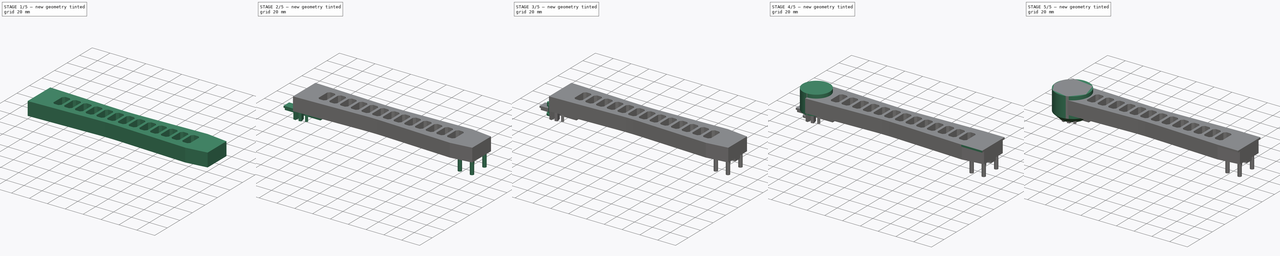
[diagram: build sequence overview — one tinted view per stage of 5, left to right]
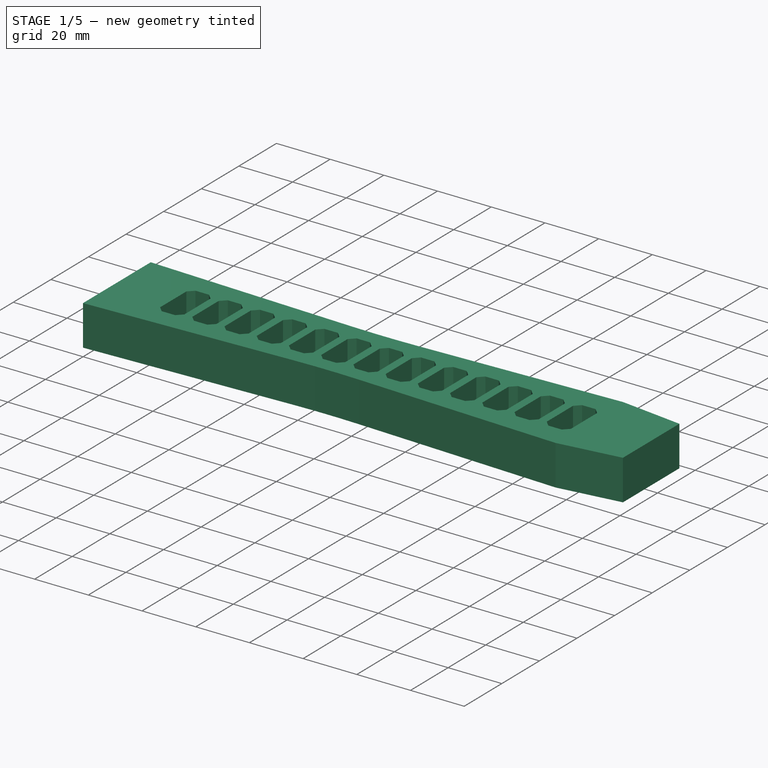
[diagram: stage 1 of 5 — iso view after this stage's code; geometry added in this stage tinted green]
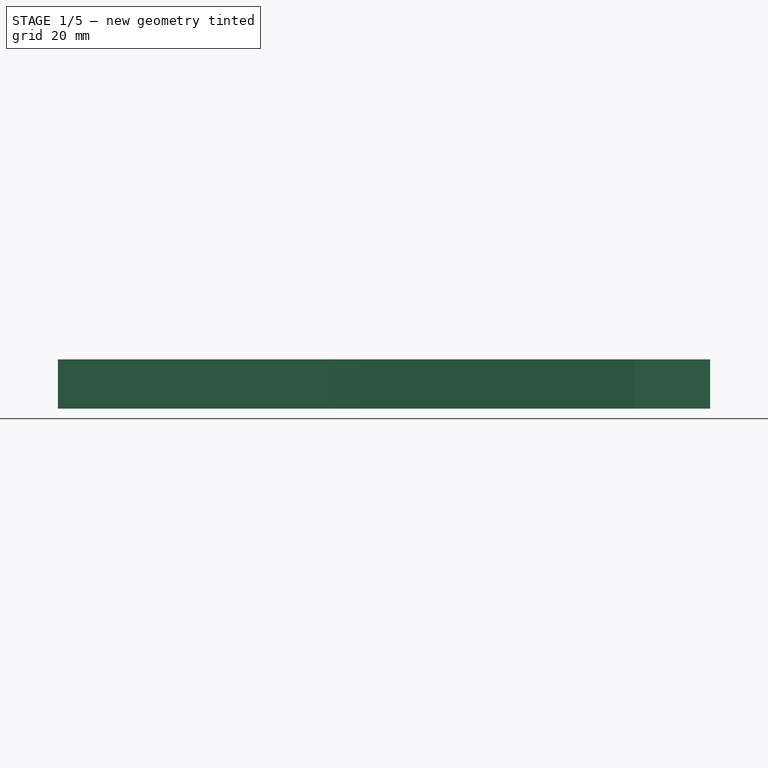
[diagram: stage 1 of 5 — front view after this stage's code; geometry added in this stage tinted green]
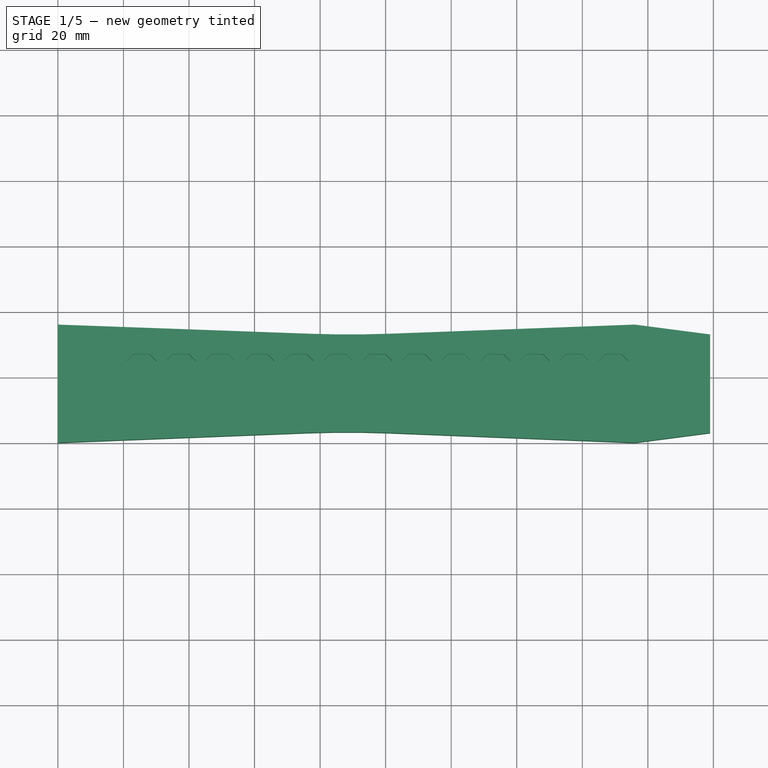
[diagram: stage 1 of 5 — top view after this stage's code; geometry added in this stage tinted green]
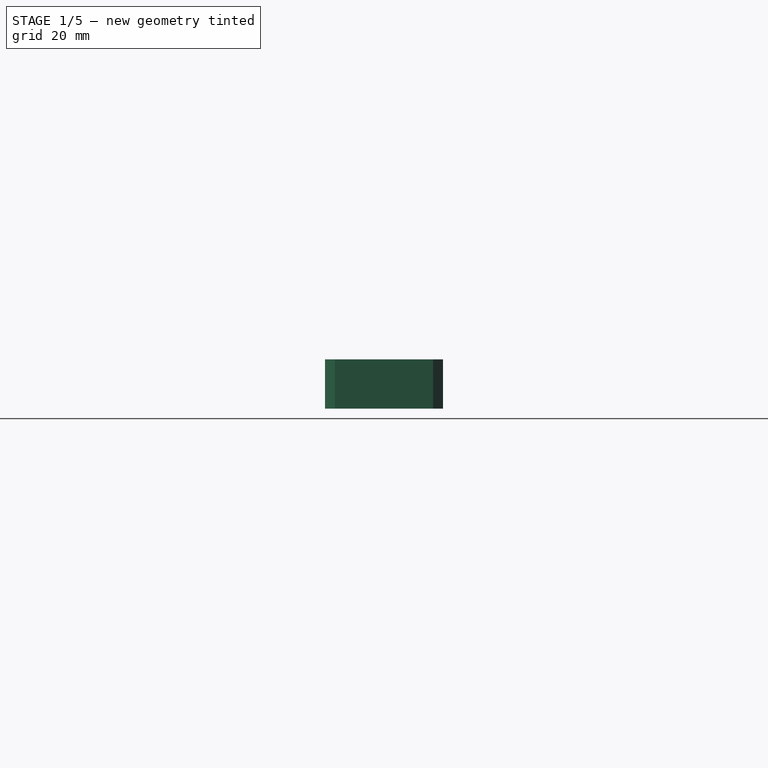
[diagram: stage 1 of 5 — right view after this stage's code; geometry added in this stage tinted green]
FCSTD DOCUMENT  (FreeCAD 0.16R4928 (Git))
Label: arm
License: All rights reserved
LicenseURL: http://en.wikipedia.org/wiki/All_rights_reserved
objects: Sketcher::SketchObject×7, PartDesign::Pad×6, Part::Cylinder×4, Part::Box×2, PartDesign::Chamfer×1, Part::MultiFuse×1, PartDesign::Pocket×1, PartDesign::LinearPattern×1
note: 30 computed .brp shape members not serialized (recipe doc carries the construction recipe); baked Part::Feature solids carry a one-line shape summary decoded from their .brp

FEATURE [Sketcher::SketchObject] Sketch004
  sketch-geometry (10):
    g0: LineSegment StartX=0 StartY=0 StartZ=0 EndX=76 EndY=3 EndZ=0
    g1: LineSegment StartX=100.84 StartY=2.9953 StartZ=0 EndX=176 EndY=0 EndZ=0
    g2: LineSegment StartX=176 StartY=36 StartZ=0 EndX=101.284 EndY=33.2169 EndZ=0
    g3: LineSegment StartX=77.0351 StartY=33.2052 StartZ=0 EndX=0 EndY=36 EndZ=0
    g4: LineSegment StartX=0 StartY=36 StartZ=0 EndX=0 EndY=0 EndZ=0
    g5: ArcOfCircle CenterX=89 CenterY=363 CenterZ=0 NormalX=0 NormalY=0 NormalZ=1 Radius=330.012 StartAngle=4.67613 EndAngle=4.74962
    g6: ArcOfCircle CenterX=88.3607 CenterY=-310.139 CenterZ=0 NormalX=0 NormalY=0 NormalZ=1 Radius=313.383 StartAngle=1.53097 EndAngle=1.61025
    g7: LineSegment StartX=176 StartY=0 StartZ=0 EndX=199 EndY=3 EndZ=0
    g8: LineSegment StartX=199 StartY=3 StartZ=0 EndX=199 EndY=33 EndZ=0
    g9: LineSegment StartX=199 StartY=33 StartZ=0 EndX=176 EndY=36 EndZ=0
  constraints (16):
    c: Coincident(g-1,g0)
    c: Coincident(g3,g4)
    c: Coincident(g4,g0)
    c: Vertical(g4)
    c: Tangent(g2,g5) = 1.5708
    c: Tangent(g3,g5) = 1.5708
    c: Tangent(g0,g6) = 1.5708
    c: Tangent(g1,g6) = 1.5708
    c: DistanceY(g2,g1) = -36
    c: DistanceY(g-1,g3) = 36
    c: DistanceX(g-1,g1) = 176
    c: DistanceY(g-1,g2) = 36
    c: Coincident(g1,g7)
    c: Coincident(g7,g8)
    c: Vertical(g8)
    c: Coincident(g8,g9)
FEATURE [PartDesign::Pad] Pad004
  Length = 15
  Length2 = 100
  Sketch = -> Sketch004
  Type = 0
FEATURE [Sketcher::SketchObject] Sketch006
  Placement = pos=(0,0,15) rot=(0,0,1;0rad)
  Support = -> Pad004 [Face12]
  sketch-geometry (10):
    g0: LineSegment StartX=21 StartY=18 StartZ=0 EndX=21 EndY=25 EndZ=0
    g1: LineSegment StartX=21 StartY=25 StartZ=0 EndX=23 EndY=27 EndZ=0
    g2: LineSegment StartX=23 StartY=27 StartZ=0 EndX=28 EndY=27 EndZ=0
    g3: LineSegment StartX=28 StartY=27 StartZ=0 EndX=30 EndY=25 EndZ=0
    g4: LineSegment StartX=30 StartY=25 StartZ=0 EndX=30 EndY=18 EndZ=0
    g5: LineSegment StartX=30 StartY=18 StartZ=0 EndX=30 EndY=11 EndZ=0
    g6: LineSegment StartX=30 StartY=11 StartZ=0 EndX=28 EndY=9 EndZ=0
    g7: LineSegment StartX=28 StartY=9 StartZ=0 EndX=23 EndY=9 EndZ=0
    g8: LineSegment StartX=23 StartY=9 StartZ=0 EndX=21 EndY=11 EndZ=0
    g9: LineSegment StartX=21 StartY=11 StartZ=0 EndX=21 EndY=18 EndZ=0
  constraints (16):
    c: Vertical(g0)
    c: Coincident(g0,g1)
    c: Coincident(g1,g2)
    c: Horizontal(g2)
    c: Coincident(g2,g3)
    c: Coincident(g3,g4)
    c: Vertical(g4)
    c: Coincident(g4,g5)
    c: Vertical(g5)
    c: Coincident(g5,g6)
    c: Coincident(g6,g7)
    c: Horizontal(g7)
    c: Coincident(g7,g8)
    c: Coincident(g8,g9)
    c: Coincident(g9,g0)
    c: Vertical(g9)
FEATURE [PartDesign::Pocket] Pocket
  Length = 8
  Sketch = -> Sketch006
  Type = 0
FEATURE [PartDesign::LinearPattern] LinearPattern
  Direction = -> Sketch006 [H_Axis]
  Length = 144
  Occurrences = 13
  Originals = -> [Pocket]
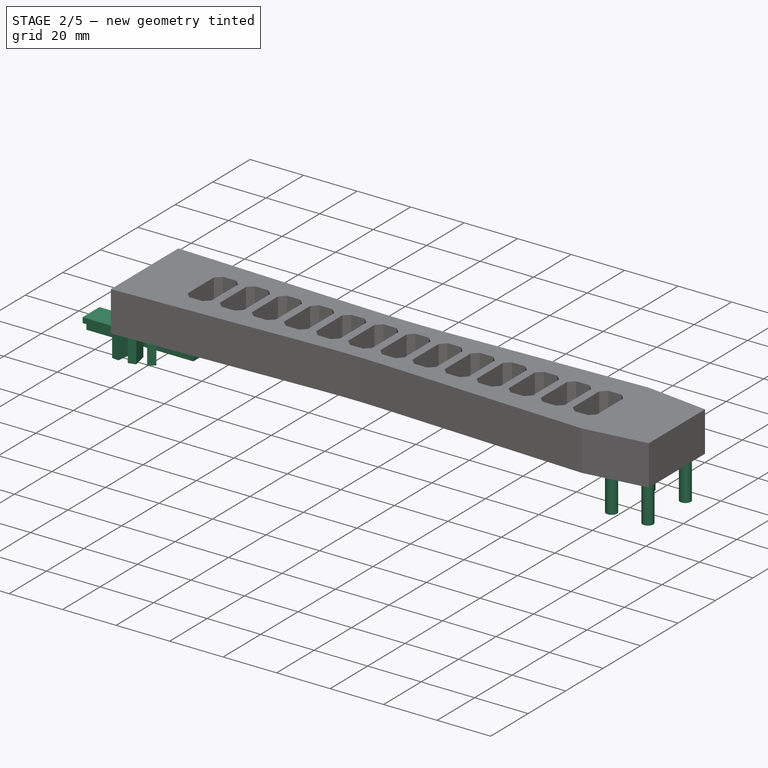
[diagram: stage 2 of 5 — iso view after this stage's code; geometry added in this stage tinted green]
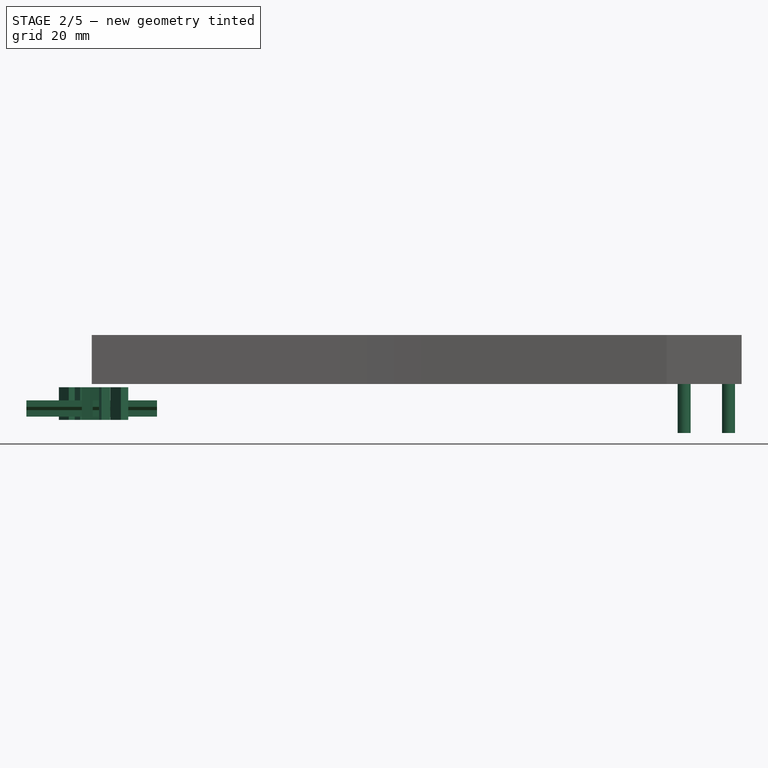
[diagram: stage 2 of 5 — front view after this stage's code; geometry added in this stage tinted green]
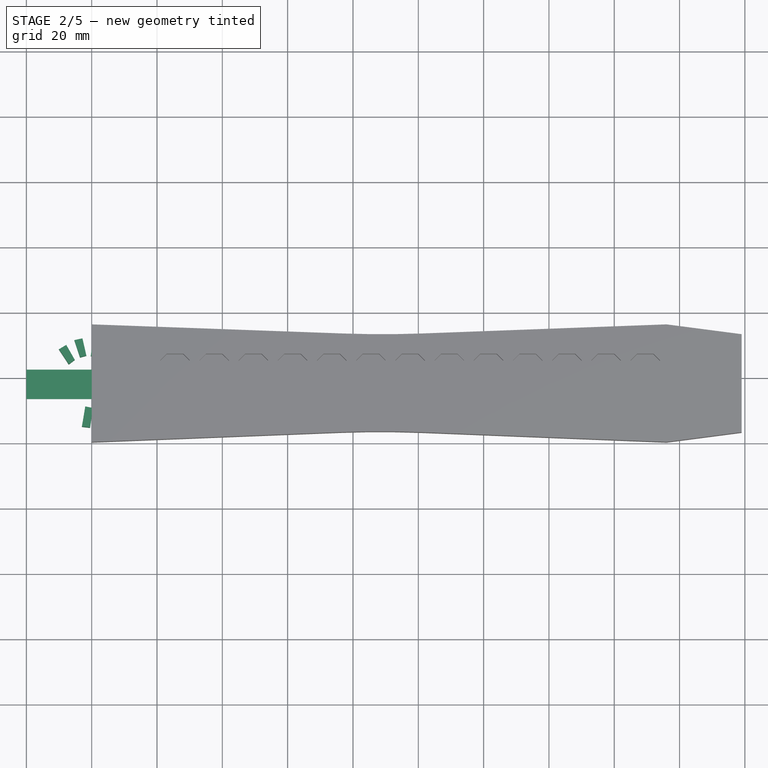
[diagram: stage 2 of 5 — top view after this stage's code; geometry added in this stage tinted green]
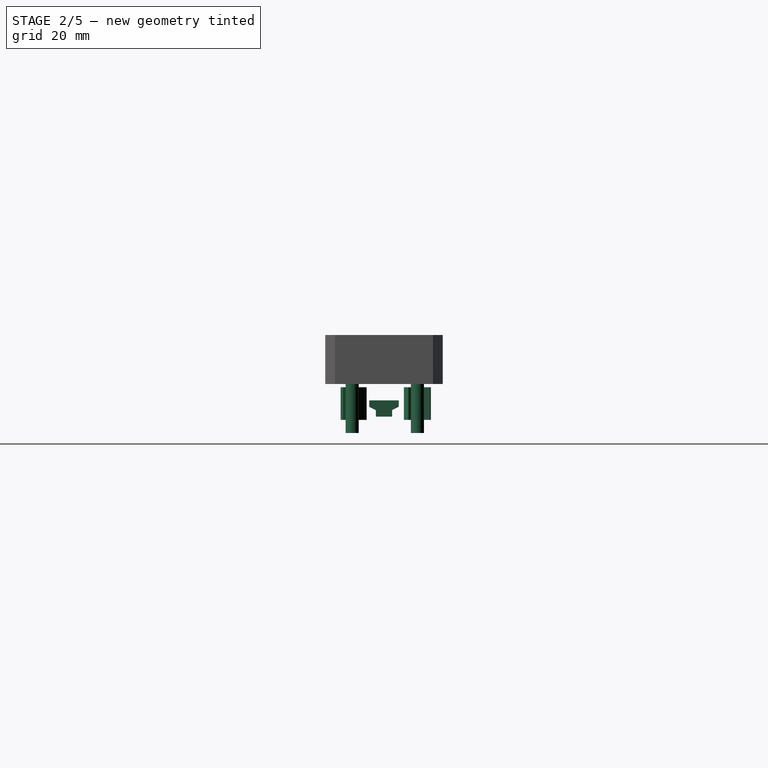
[diagram: stage 2 of 5 — right view after this stage's code; geometry added in this stage tinted green]
FEATURE [PartDesign::Pad] Pad002
  Length = 10
  Length2 = 100
  Placement = pos=(0,0,-11) rot=(0,0,1;0rad)
  Sketch = -> Sketch003
  Type = 0
FEATURE [PartDesign::Pad] Pad003
  Length = 40
  Length2 = 100
  Placement = pos=(-20,29.5,-6) rot=(-0.57735,0.57735,0.57735;4.18879rad)
  Reversed = true
  Sketch = -> Sketch
  Type = 0
FEATURE [Sketcher::SketchObject] Sketch005
  Placement = pos=(-6.25,4,-15) rot=(0,0,1;0rad)
  sketch-geometry (4):
    g0: Circle CenterX=201.227 CenterY=4.24831 CenterZ=0 NormalX=0 NormalY=0 NormalZ=1 Radius=2
    g1: Circle CenterX=201.226 CenterY=24.2448 CenterZ=0 NormalX=0 NormalY=0 NormalZ=1 Radius=2
    g2: Circle CenterX=187.638 CenterY=4.25225 CenterZ=0 NormalX=0 NormalY=0 NormalZ=1 Radius=2
    g3: Circle CenterX=187.638 CenterY=24.2379 CenterZ=0 NormalX=0 NormalY=0 NormalZ=1 Radius=2
  constraints (4):
    c: Radius(g0) = 2
    c: Radius(g1) = 2
    c: Radius(g2) = 2
    c: Radius(g3) = 2
FEATURE [PartDesign::Pad] Pad005
  Length = 30
  Length2 = 100
  Placement = pos=(-6.25,4,-15) rot=(0,0,1;0rad)
  Sketch = -> Sketch005
  Type = 0
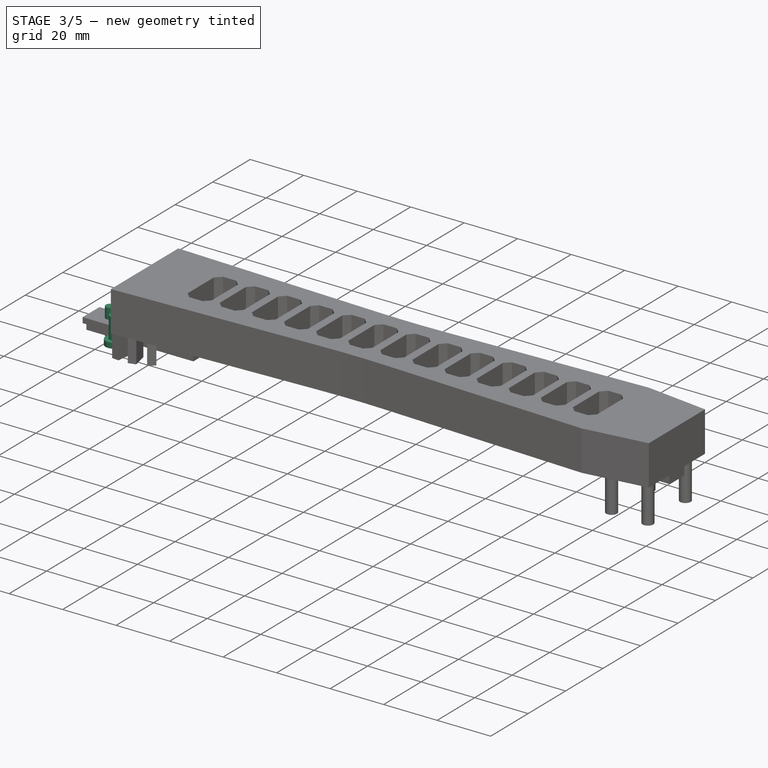
[diagram: stage 3 of 5 — iso view after this stage's code; geometry added in this stage tinted green]
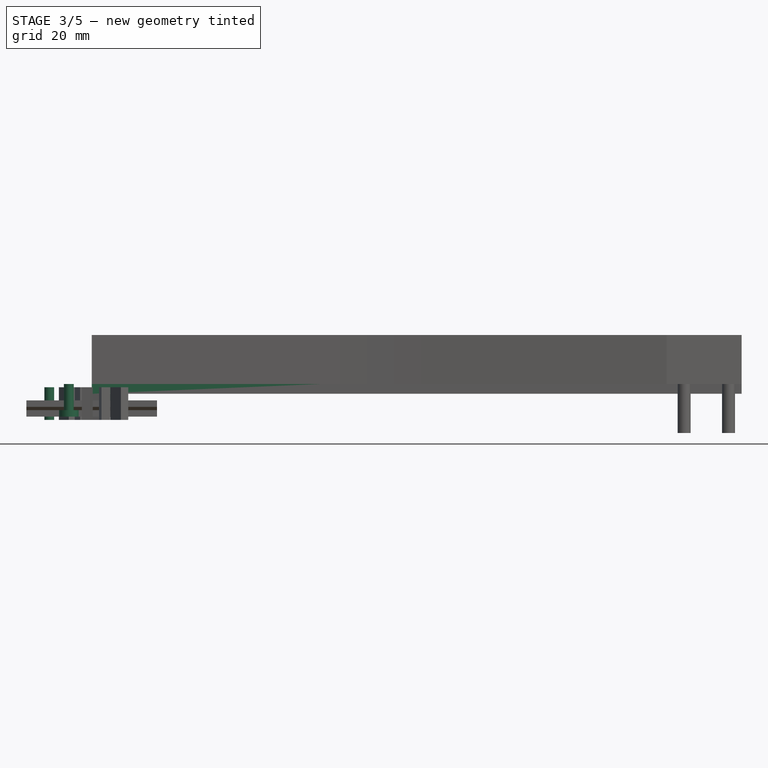
[diagram: stage 3 of 5 — front view after this stage's code; geometry added in this stage tinted green]
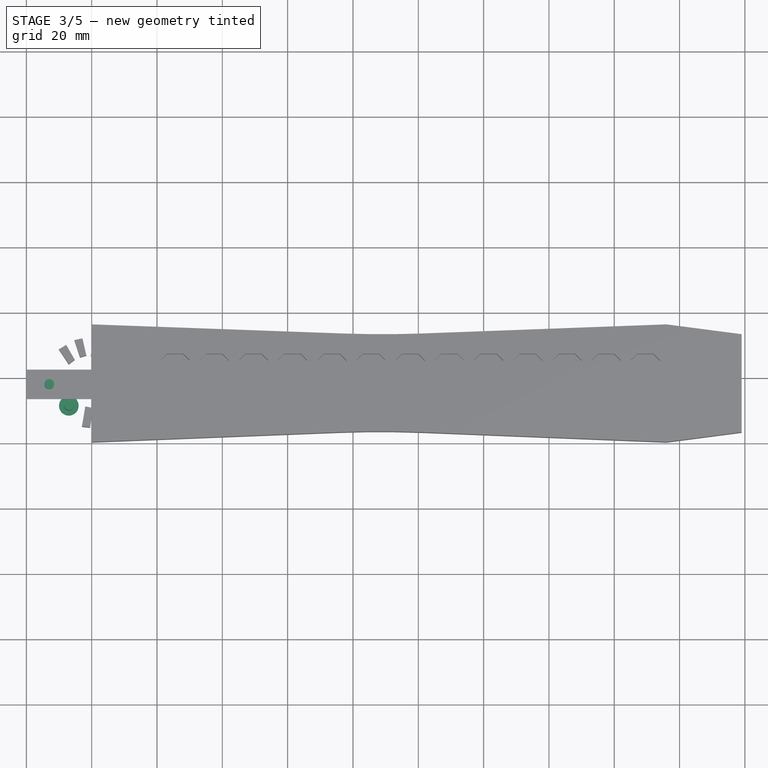
[diagram: stage 3 of 5 — top view after this stage's code; geometry added in this stage tinted green]
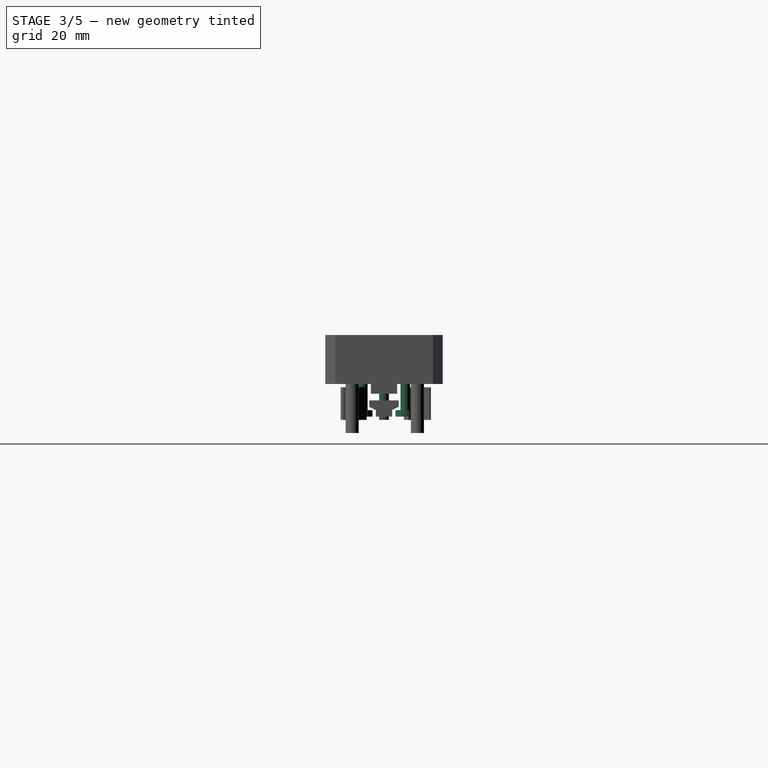
[diagram: stage 3 of 5 — right view after this stage's code; geometry added in this stage tinted green]
FEATURE [Part::Cylinder] Cylinder003
  Angle = 360
  Height = 10
  Placement = pos=(-13,18,-11) rot=(0,0,1;0rad)
  Radius = 1.5
FEATURE [Sketcher::SketchObject] Sketch002
  Placement = pos=(0,0,-10) rot=(1,0,0;3.14159rad)
  sketch-geometry (2):
    g0: Circle CenterX=-7 CenterY=-11.4933 CenterZ=0 NormalX=0 NormalY=0 NormalZ=1 Radius=3.00077
    g1: Circle CenterX=7 CenterY=-24.5112 CenterZ=0 NormalX=0 NormalY=0 NormalZ=1 Radius=3
FEATURE [Part::Box] Box002  label="Cube002"
  Height = 8.5
  Length = 199
  Placement = pos=(0,14,-3) rot=(0,0,1;0rad)
  Width = 8
FEATURE [PartDesign::Pad] Pad
  Length = 2
  Length2 = 100
  Placement = pos=(0,0,-10) rot=(1,0,0;3.14159rad)
  Reversed = true
  Sketch = -> Sketch002
  Type = 0
FEATURE [PartDesign::Pad] Pad001
  Length = 10
  Length2 = 100
  Placement = pos=(0,0,-10) rot=(1,0,0;3.14159rad)
  Reversed = true
  Sketch = -> Sketch001
  Type = 0
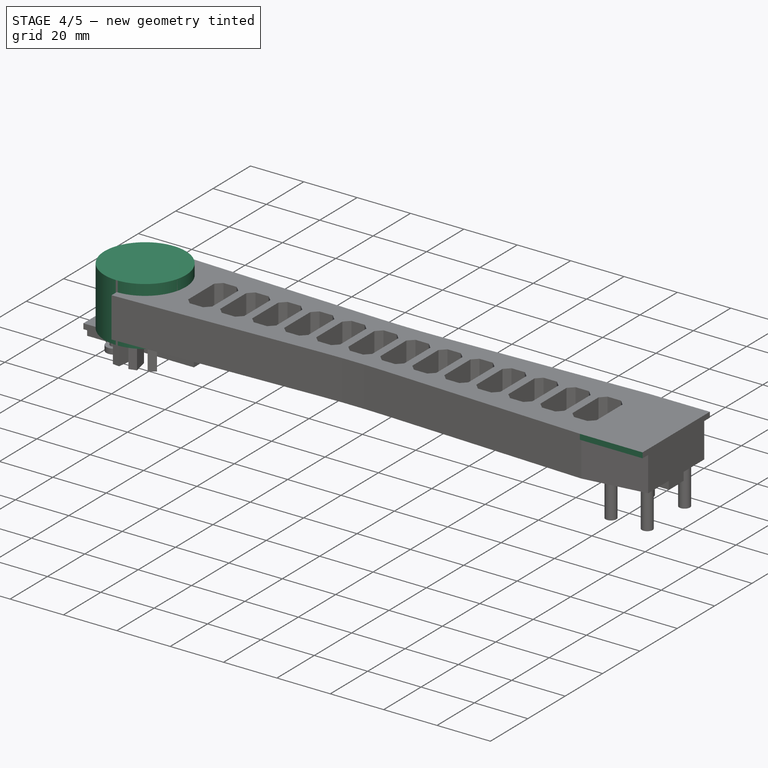
[diagram: stage 4 of 5 — iso view after this stage's code; geometry added in this stage tinted green]
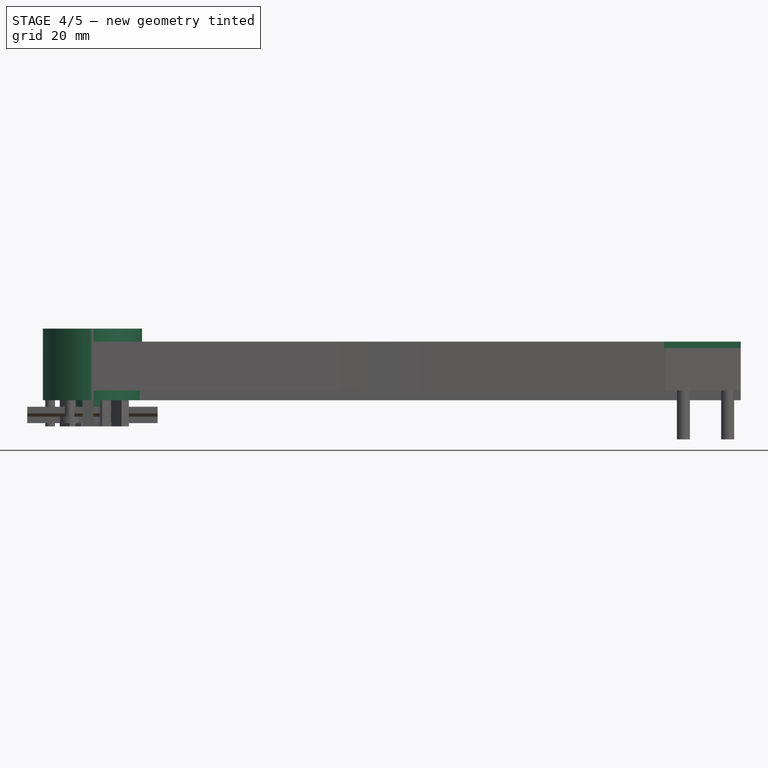
[diagram: stage 4 of 5 — front view after this stage's code; geometry added in this stage tinted green]
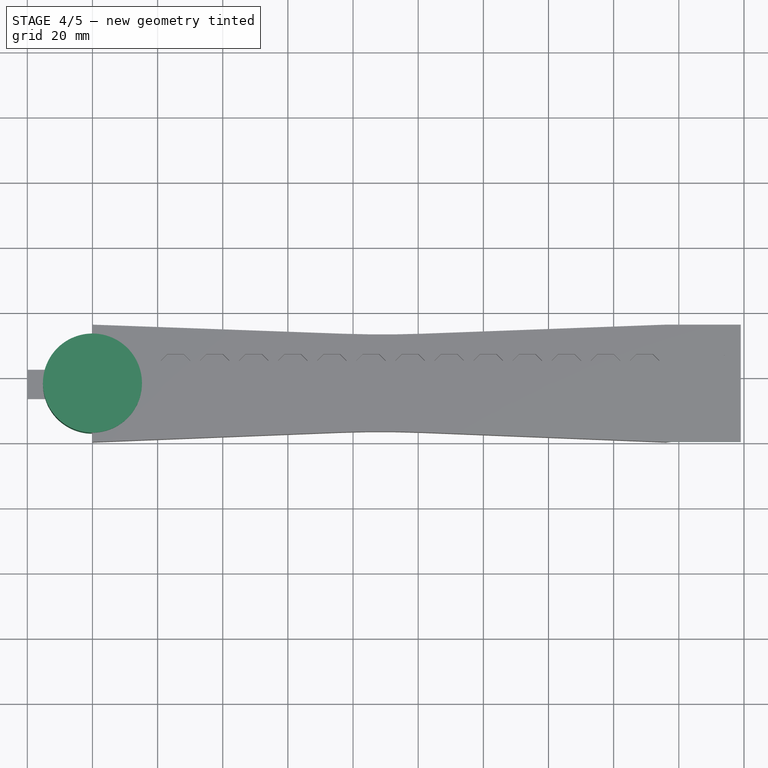
[diagram: stage 4 of 5 — top view after this stage's code; geometry added in this stage tinted green]
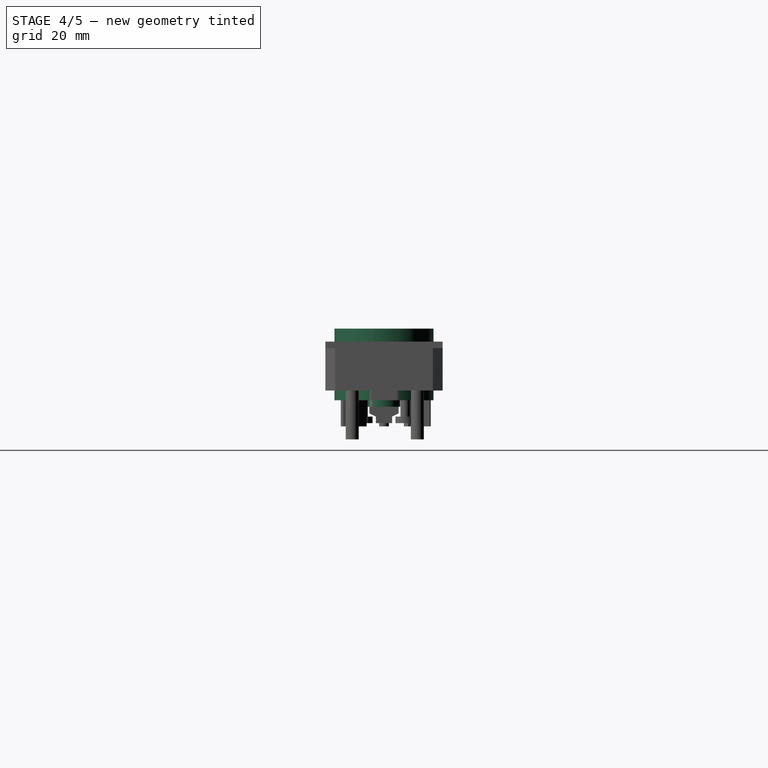
[diagram: stage 4 of 5 — right view after this stage's code; geometry added in this stage tinted green]
FEATURE [Part::Cylinder] Cylinder001
  Angle = 360
  Height = 22
  Placement = pos=(0,18,-3) rot=(0,0,1;0rad)
  Radius = 15.2
FEATURE [Part::Box] Box001  label="Cube001"
  Height = 2
  Length = 23.5
  Placement = pos=(175.5,0,13) rot=(0,0,1;0rad)
  Width = 36
FEATURE [Sketcher::SketchObject] Sketch
  Placement = pos=(-20,29.5,-6) rot=(-0.57735,0.57735,0.57735;4.18879rad)
  sketch-geometry (8):
    g0: LineSegment StartX=7 StartY=1 StartZ=0 EndX=16 EndY=1 EndZ=0
    g1: LineSegment StartX=16 StartY=1 StartZ=0 EndX=16 EndY=-1 EndZ=0
    g2: LineSegment StartX=7 StartY=1 StartZ=0 EndX=7 EndY=-1 EndZ=0
    g3: LineSegment StartX=7 StartY=-1 StartZ=0 EndX=9 EndY=-2 EndZ=0
    g4: LineSegment StartX=9 StartY=-2 StartZ=0 EndX=9 EndY=-4 EndZ=0
    g5: LineSegment StartX=9 StartY=-4 StartZ=0 EndX=14 EndY=-4 EndZ=0
    g6: LineSegment StartX=14 StartY=-4 StartZ=0 EndX=14 EndY=-2 EndZ=0
    g7: LineSegment StartX=14 StartY=-2 StartZ=0 EndX=16 EndY=-1 EndZ=0
  constraints (14):
    c: Horizontal(g0)
    c: Coincident(g0,g1)
    c: Vertical(g1)
    c: Coincident(g0,g2)
    c: Vertical(g2)
    c: Coincident(g2,g3)
    c: Coincident(g3,g4)
    c: Vertical(g4)
    c: Coincident(g4,g5)
    c: Horizontal(g5)
    c: Coincident(g5,g6)
    c: Vertical(g6)
    c: Coincident(g6,g7)
    c: Coincident(g1,g7)
FEATURE [Part::Cylinder] Cylinder002
  Angle = 360
  Height = 10
  Placement = pos=(0,18,-5) rot=(0,0,1;0rad)
  Radius = 5
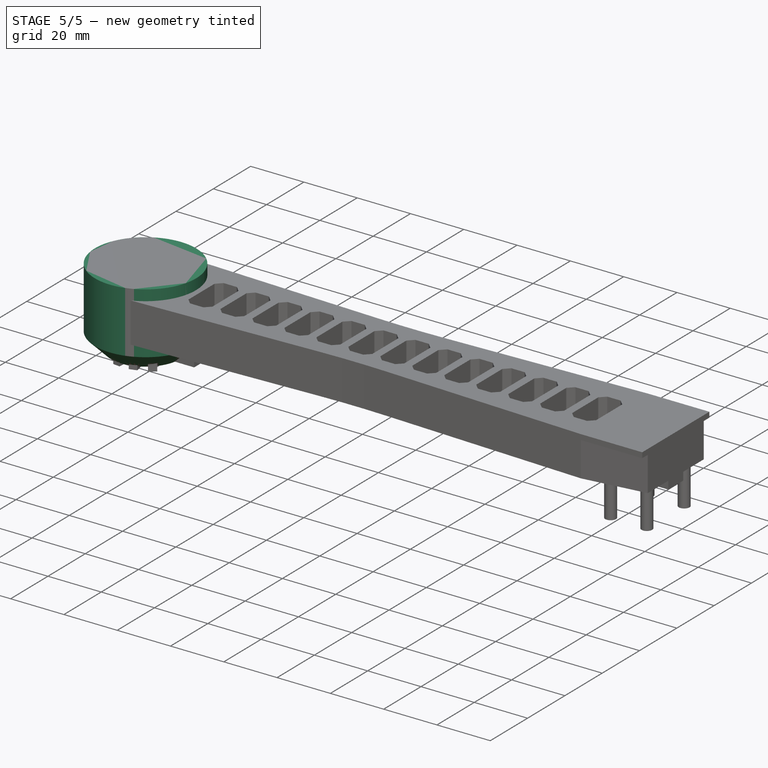
[diagram: stage 5 of 5 — iso view after this stage's code; geometry added in this stage tinted green]
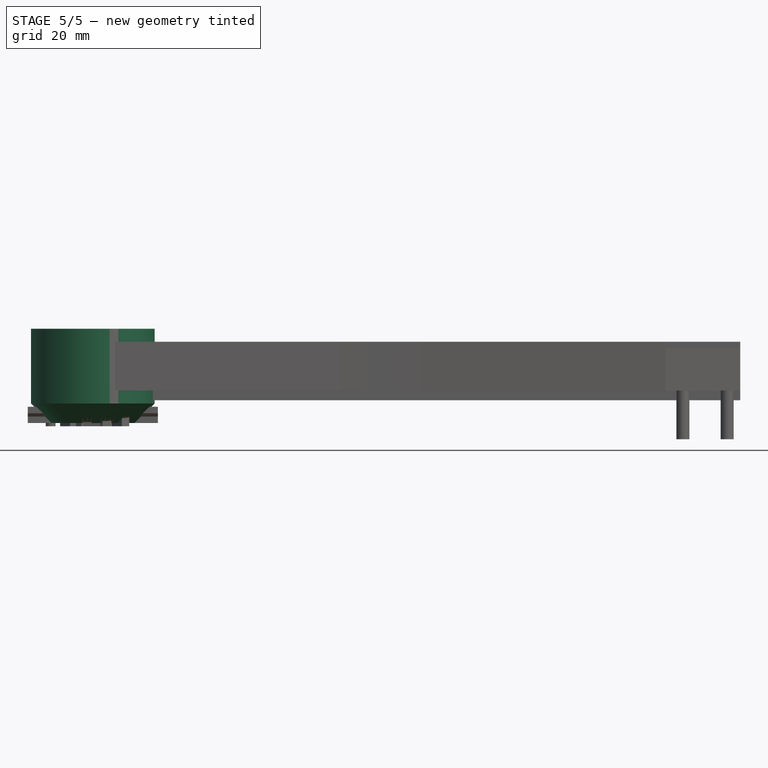
[diagram: stage 5 of 5 — front view after this stage's code; geometry added in this stage tinted green]
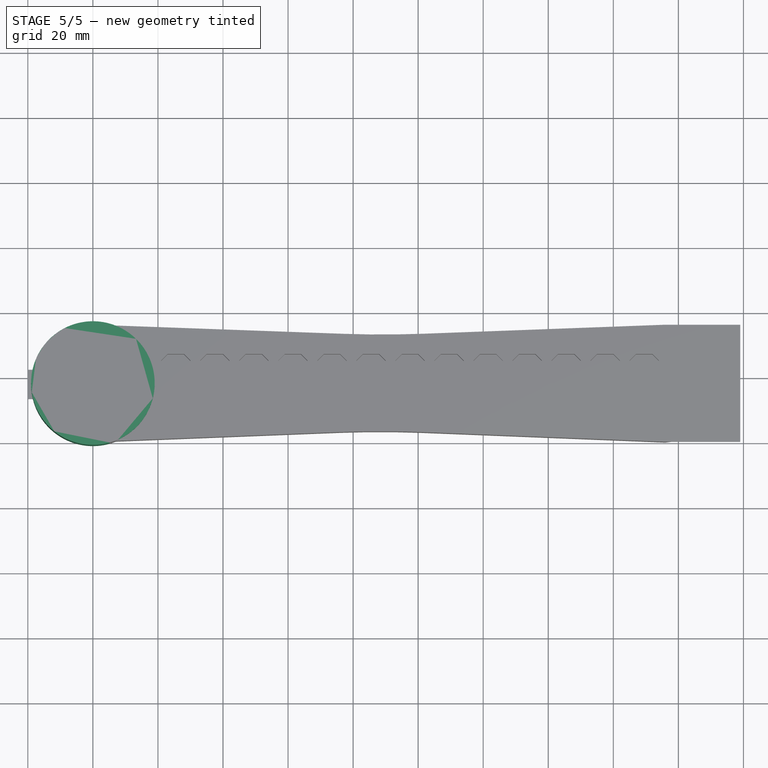
[diagram: stage 5 of 5 — top view after this stage's code; geometry added in this stage tinted green]
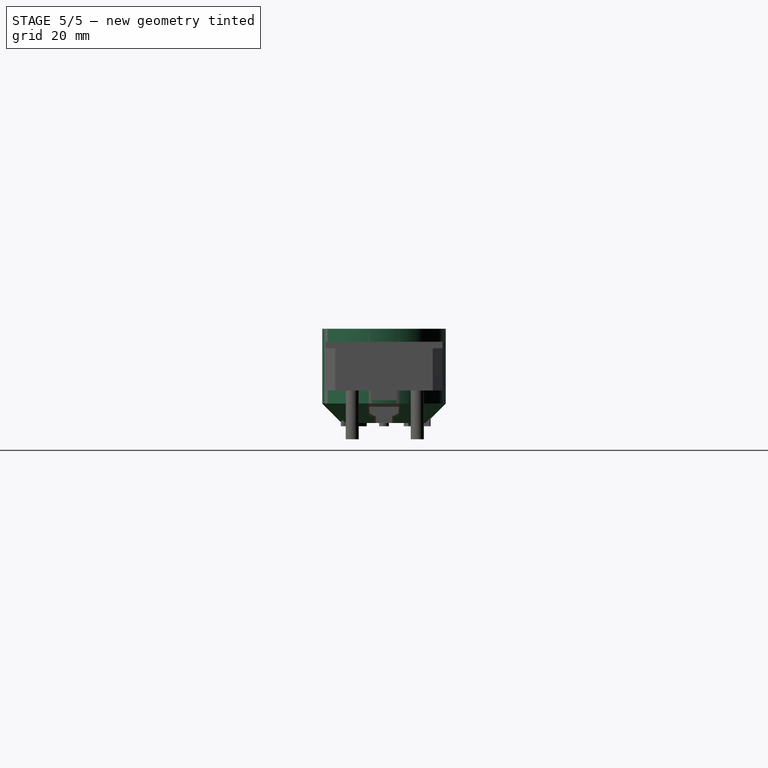
[diagram: stage 5 of 5 — right view after this stage's code; geometry added in this stage tinted green]
FEATURE [Part::Cylinder] Cylinder
  Angle = 360
  Height = 29
  Placement = pos=(0,18,-10) rot=(0,0,1;0rad)
  Radius = 19
FEATURE [Sketcher::SketchObject] Sketch003
  Placement = pos=(0,0,-11) rot=(0,0,1;0rad)
  sketch-geometry (24):
    g0: LineSegment StartX=-3 StartY=5 StartZ=0 EndX=-0.487519 EndY=4.71382 EndZ=0
    g1: LineSegment StartX=-0.487519 StartY=4.71382 StartZ=0 EndX=0.310489 EndY=10.6989 EndZ=0
    g2: LineSegment StartX=0.310489 StartY=10.6989 StartZ=0 EndX=-1.9693 EndY=11.1581 EndZ=0
    g3: LineSegment StartX=-1.9693 StartY=11.1581 StartZ=0 EndX=-3 EndY=5 EndZ=0
    g4: LineSegment StartX=3 StartY=4.71382 StartZ=0 EndX=5.69704 EndY=5.47193 EndZ=0
    g5: LineSegment StartX=5.69704 StartY=5.47193 StartZ=0 EndX=4.46013 EndY=11 EndZ=0
    g6: LineSegment StartX=4.46013 StartY=11 StartZ=0 EndX=2.22571 EndY=10.3797 EndZ=0
    g7: LineSegment StartX=2.22571 StartY=10.3797 StartZ=0 EndX=3 EndY=4.71382 EndZ=0
    g8: LineSegment StartX=8.92897 StartY=6.58914 StartZ=0 EndX=11.1995 EndY=8.3192 EndZ=0
    g9: LineSegment StartX=11.1995 StartY=8.3192 StartZ=0 EndX=7.77187 EndY=12.6783 EndZ=0
    g10: LineSegment StartX=7.77187 StartY=12.6783 StartZ=0 EndX=5.73694 EndY=11.4414 EndZ=0
    g11: LineSegment StartX=5.73694 StartY=11.4414 StartZ=0 EndX=8.92897 EndY=6.58914 EndZ=0
    g12: LineSegment StartX=3 StartY=32 StartZ=0 EndX=0.509665 EndY=32.3366 EndZ=0
    g13: LineSegment StartX=0.509665 StartY=32.3366 StartZ=0 EndX=-0.288343 EndY=26.6708 EndZ=0
    g14: LineSegment StartX=-0.288343 StartY=26.6708 StartZ=0 EndX=2.30518 EndY=26.2319 EndZ=0
    g15: LineSegment StartX=2.30518 StartY=26.2319 StartZ=0 EndX=3 EndY=32 EndZ=0
    g16: LineSegment StartX=-2.83791 StartY=32 StartZ=0 EndX=-5.31238 EndY=31.4738 EndZ=0
    g17: LineSegment StartX=-5.31238 StartY=31.4738 StartZ=0 EndX=-3.55768 EndY=26.2145 EndZ=0
    g18: LineSegment StartX=-3.55768 StartY=26.2145 StartZ=0 EndX=-1.63684 EndY=26.7506 EndZ=0
    g19: LineSegment StartX=-1.63684 StartY=26.7506 StartZ=0 EndX=-2.83791 EndY=32 EndZ=0
    g20: LineSegment StartX=-7.78961 StartY=30.0099 StartZ=0 EndX=-10.0531 EndY=28.6484 EndZ=0
    g21: LineSegment StartX=-10.0531 StartY=28.6484 StartZ=0 EndX=-7.02062 EndY=24.0848 EndZ=0
    g22: LineSegment StartX=-7.02062 StartY=24.0848 StartZ=0 EndX=-5.1995 EndY=25.4613 EndZ=0
    g23: LineSegment StartX=-5.1995 StartY=25.4613 StartZ=0 EndX=-7.78961 EndY=30.0099 EndZ=0
  constraints (24):
    c: Coincident(g0,g1)
    c: Coincident(g1,g2)
    c: Coincident(g2,g3)
    c: Coincident(g0,g3)
    c: Coincident(g4,g5)
    c: Coincident(g5,g6)
    c: Coincident(g6,g7)
    c: Coincident(g7,g4)
    c: Coincident(g8,g9)
    c: Coincident(g9,g10)
    c: Coincident(g10,g11)
    c: Coincident(g11,g8)
    c: Coincident(g12,g13)
    c: Coincident(g13,g14)
    c: Coincident(g14,g15)
    c: Coincident(g15,g12)
    c: Coincident(g16,g17)
    c: Coincident(g17,g18)
    c: Coincident(g18,g19)
    c: Coincident(g19,g16)
    c: Coincident(g20,g21)
    c: Coincident(g21,g22)
    c: Coincident(g22,g23)
    c: Coincident(g23,g20)
FEATURE [Sketcher::SketchObject] Sketch001
  Placement = pos=(0,0,-10) rot=(1,0,0;3.14159rad)
  sketch-geometry (2):
    g0: Circle CenterX=-7 CenterY=-11.4933 CenterZ=0 NormalX=0 NormalY=0 NormalZ=1 Radius=1.502
    g1: Circle CenterX=7 CenterY=-24.5112 CenterZ=0 NormalX=0 NormalY=0 NormalZ=1 Radius=1.45103
FEATURE [PartDesign::Chamfer] Chamfer
  Base = -> Cylinder [Edge3]
  Placement = pos=(0,18,-10) rot=(0,0,1;0rad)
  Size = 6
FEATURE [Part::MultiFuse] Fusion
  Shapes = -> [Cylinder003,Cylinder001,Box001,Cylinder002,Pad003,Box002,Pad,Pad002,Pad001,Pad005]
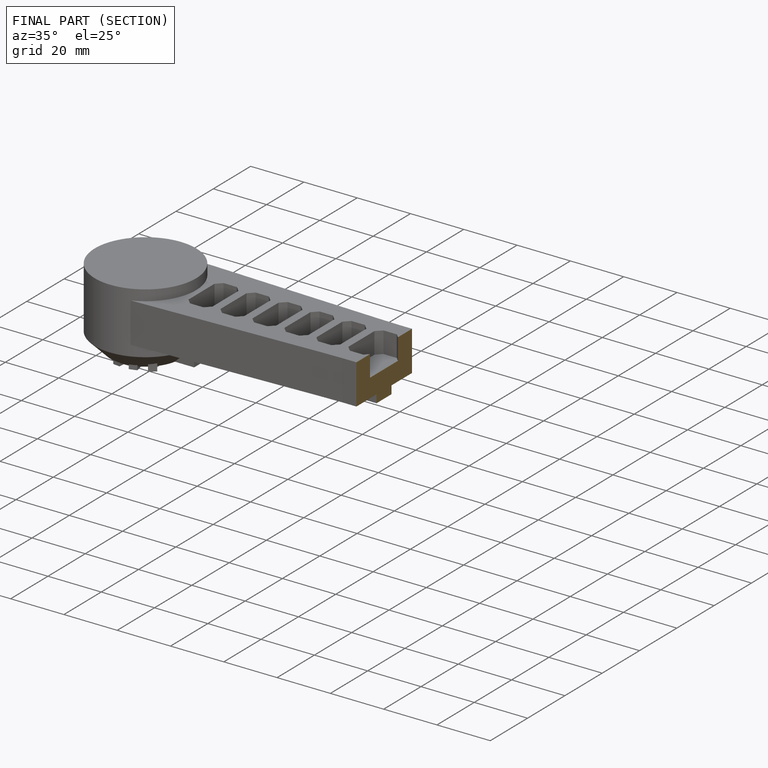
[diagram: finished part — half-section view (interior)]
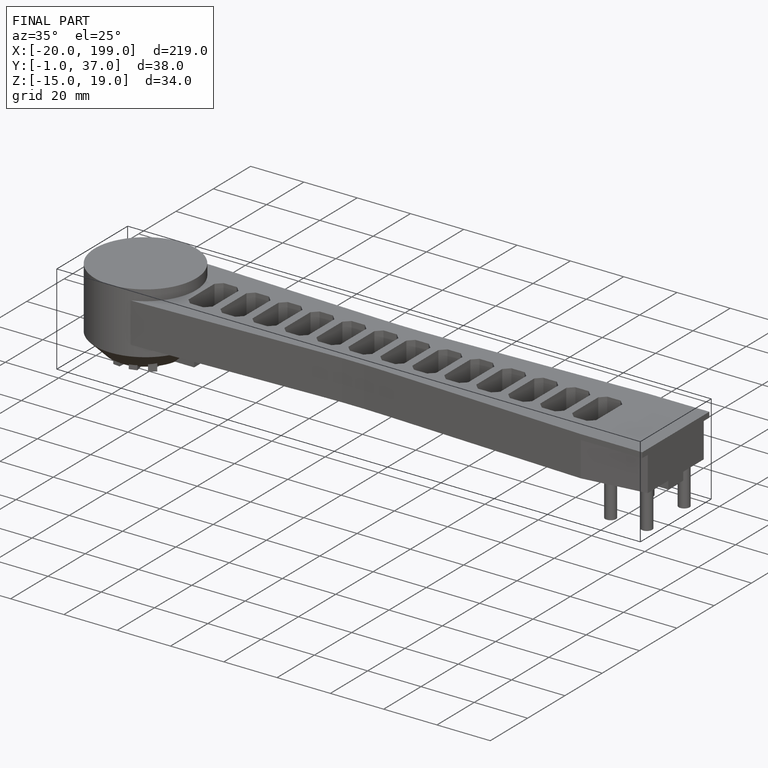
[diagram: finished part — iso view with bounding-box wireframe]
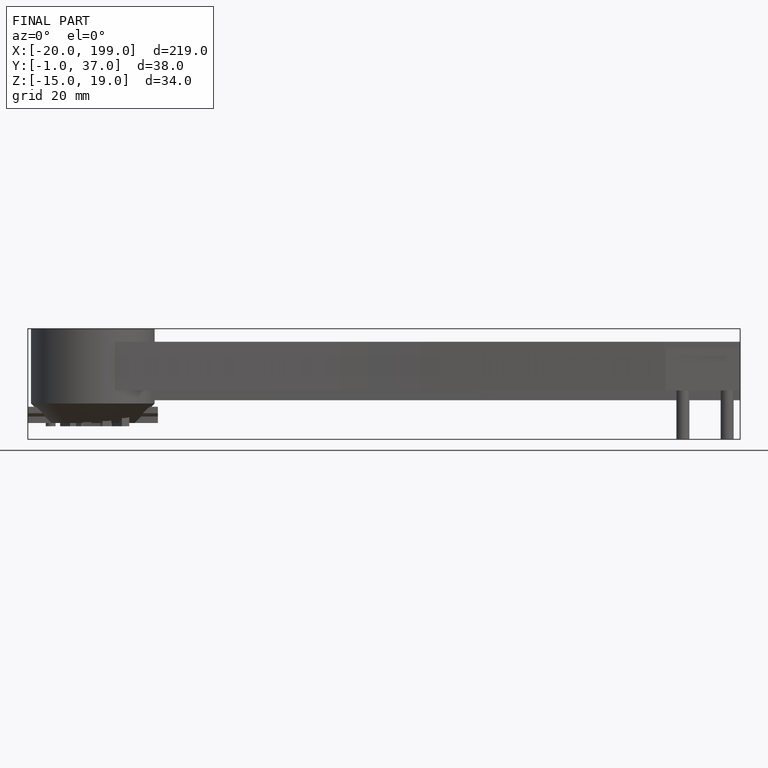
[diagram: finished part — front view with bounding-box wireframe]
